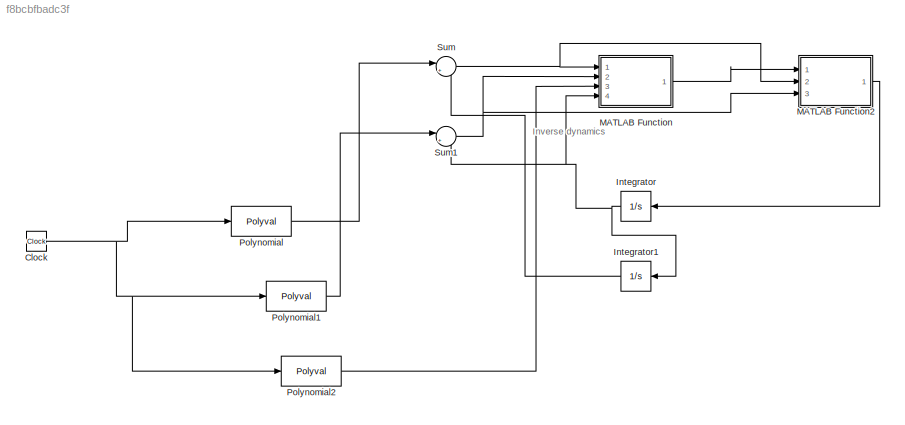
MODEL slx_f8bcbfbadc3f
KIND model
CONFIG AbsTol = auto
CONFIG EnableMultiTasking = off
CONFIG FixedStep = auto
CONFIG MaxStep = auto
CONFIG MinStep = auto
CONFIG RelTol = 1e-3
CONFIG SampleTimeConstraint = Unconstrained
CONFIG Solver = VariableStepAuto
CONFIG SolverName = VariableStepAuto
CONFIG StartTime = 0.0
CONFIG StopTime = 10.0
BLOCK [Clock] Clock
  Decimation = 1
BLOCK [Integrator] Integrator
  Ports = [1, 1]
BLOCK [Integrator] Integrator1
  Ports = [1, 1]
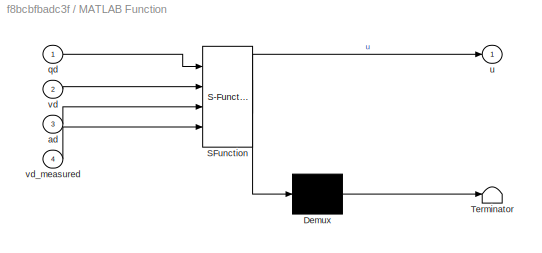
BLOCK [SubSystem] MATLAB Function
  ErrorFcn = Stateflow.Translate.translate
  PermitHierarchicalResolution = ExplicitOnly
  Ports = [4, 1]
  RequestExecContextInheritance = off
  SFBlockType = MATLAB Function
  TreatAsAtomicUnit = on
  Variant = off
BLOCK [Demux] MATLAB Function/ Demux 
  Outputs = 1
  Ports = [1, 1]
BLOCK [S-Function] MATLAB Function/ SFunction 
  EnableBusSupport = on
  FunctionName = sf_sfun
  PortCounts = [4 2]
  Ports = [4, 2]
  SFcnIsStateOwnerBlock = off
  SFunctionDeploymentMode = off
  Tag = Stateflow S-Function inversecontroller_sim 1
BLOCK [Terminator] MATLAB Function/ Terminator 
BLOCK [Inport] MATLAB Function/ad
  IconDisplay = Port number
  Port = 3
BLOCK [Inport] MATLAB Function/qd
  IconDisplay = Port number
BLOCK [Outport] MATLAB Function/u
  IconDisplay = Port number
BLOCK [Inport] MATLAB Function/vd
  IconDisplay = Port number
  Port = 2
BLOCK [Inport] MATLAB Function/vd_measured
  IconDisplay = Port number
  Port = 4
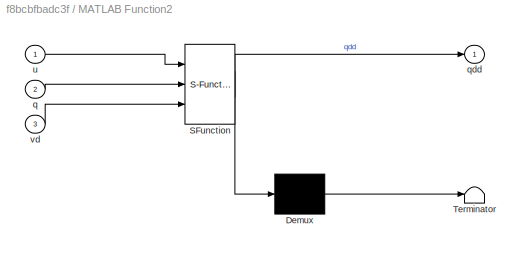
BLOCK [SubSystem] MATLAB Function2
  ErrorFcn = Stateflow.Translate.translate
  PermitHierarchicalResolution = ExplicitOnly
  Ports = [3, 1]
  RequestExecContextInheritance = off
  SFBlockType = MATLAB Function
  TreatAsAtomicUnit = on
  Variant = off
BLOCK [Demux] MATLAB Function2/ Demux 
  Outputs = 1
  Ports = [1, 1]
BLOCK [S-Function] MATLAB Function2/ SFunction 
  EnableBusSupport = on
  FunctionName = sf_sfun
  PortCounts = [3 2]
  Ports = [3, 2]
  SFcnIsStateOwnerBlock = off
  SFunctionDeploymentMode = off
  Tag = Stateflow S-Function inversecontroller_sim 3
BLOCK [Terminator] MATLAB Function2/ Terminator 
BLOCK [Inport] MATLAB Function2/q
  IconDisplay = Port number
  Port = 2
BLOCK [Outport] MATLAB Function2/qdd
  IconDisplay = Port number
BLOCK [Inport] MATLAB Function2/u
  IconDisplay = Port number
BLOCK [Inport] MATLAB Function2/vd
  IconDisplay = Port number
  Port = 3
BLOCK [Polyval] Polynomial
  Coefs = [ a1(1) a1(2) a1(3) a1(4)]
BLOCK [Polyval] Polynomial1
  Coefs = [a2(2) 2*a2(3) 3*a2(4)]
BLOCK [Polyval] Polynomial2
  Coefs = [2*a3(3) 6*a3(4)]
BLOCK [Sum] Sum
  IconShape = round
  InputSameDT = off
  Inputs = |+-
  OutDataTypeStr = Inherit: Inherit via internal rule
  Ports = [2, 1]
  SaturateOnIntegerOverflow = off
BLOCK [Sum] Sum1
  IconShape = round
  InputSameDT = off
  Inputs = |+-
  OutDataTypeStr = Inherit: Inherit via internal rule
  Ports = [2, 1]
  SaturateOnIntegerOverflow = off
ANNOTATION (root): Inverse dynamics
NET Clock:1 -> Polynomial1:1, Polynomial2:1, Polynomial:1
LINE Integrator1:1 -> Sum:2
NET Integrator:1 -> Integrator1:1, MATLAB Function:4, Sum1:2
LINE MATLAB Function2:1 -> Integrator:1
LINE MATLAB Function:1 -> MATLAB Function2:1
LINE Polynomial1:1 -> Sum1:1
LINE Polynomial2:1 -> MATLAB Function:3
LINE Polynomial:1 -> Sum:1
NET Sum1:1 -> MATLAB Function2:3, MATLAB Function:2
NET Sum:1 -> MATLAB Function2:2, MATLAB Function:1
note: NET lines group one-source signal fan-out (src -> all destinations, sorted); 1:1 wires keep LINE
CHART MATLAB Function states=1 transitions=1
  STATE_LABEL 'eML_blk_kernel()'
  STATE_LABEL 'SCRIPT:\n\n\nfunction u = fcn(qd,vd,ad,vd_measured)\nKv= [1 1 1];\nKp =[1 1 1];\n% % Kv = [1 0 0;\n%       0 1 0;\n%       0 0 1;];\n% Kp =  [1 0 0;\n%        0 1 0;\n%        0 0 1;];\naq = ad - Kv*(vd) - Kp*(qd)\n [M,C]=dynamics();\n \n u = M*aq + C*vd_measured +G\n \nfunction [M,C] = dynamics()\nI = [0.006757, 0.0006036, 0.0015514;\n    0.001745, 0.0005596, 0.00006455;\n    0.00706657, 0.0006254, 0.0015708];\nm = [...<+1920ch>'
CHART MATLAB Function2 states=1 transitions=1
  STATE_LABEL 'eML_blk_kernel()'
  STATE_LABEL 'SCRIPT:\n\nfunction qdd   = dynamics(u,q,vd)\nI = [0.006757, 0.0006036, 0.0015514;\n    0.001745, 0.0005596, 0.00006455;\n    0.00706657, 0.0006254, 0.0015708];\nm = [1.01992, 0.3519, 0.22772]; % masses of the link in kg\nl = [0.25107, 0.191, 0.37843];% lengths of links in m\nr = [0.10424, 0.14550, 0.203];\n% q = [10,15,90];\nt1= q(1);\nt2= q(2);\nt3= q(3);\n\nM11 = I(5)*(sin(t2)^2) + I(6)*(cos(t2+t3)^2)+ m(2)*...<+1691ch>'
